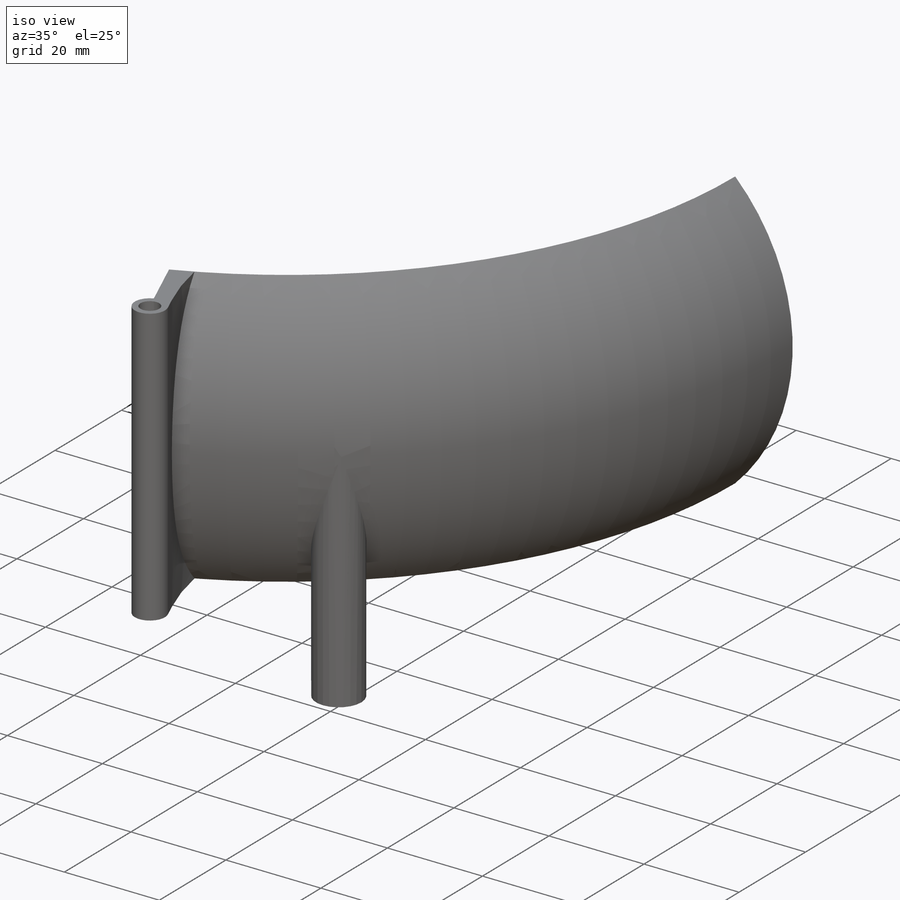
[diagram: iso view]
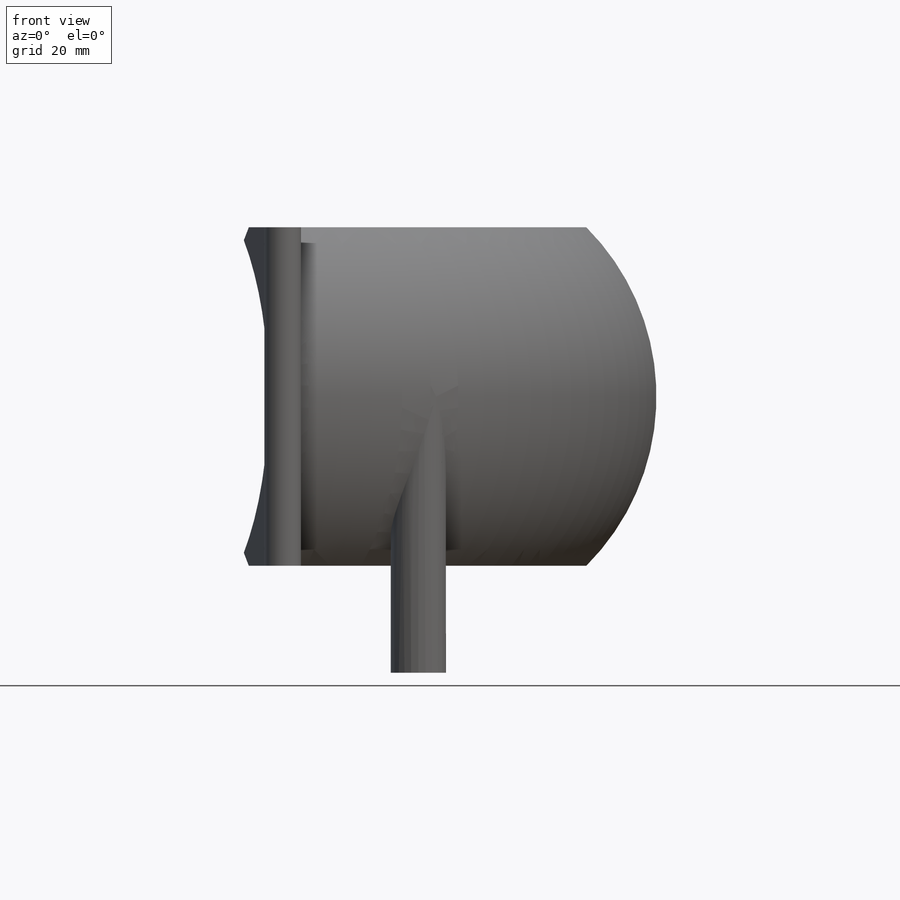
[diagram: front view]
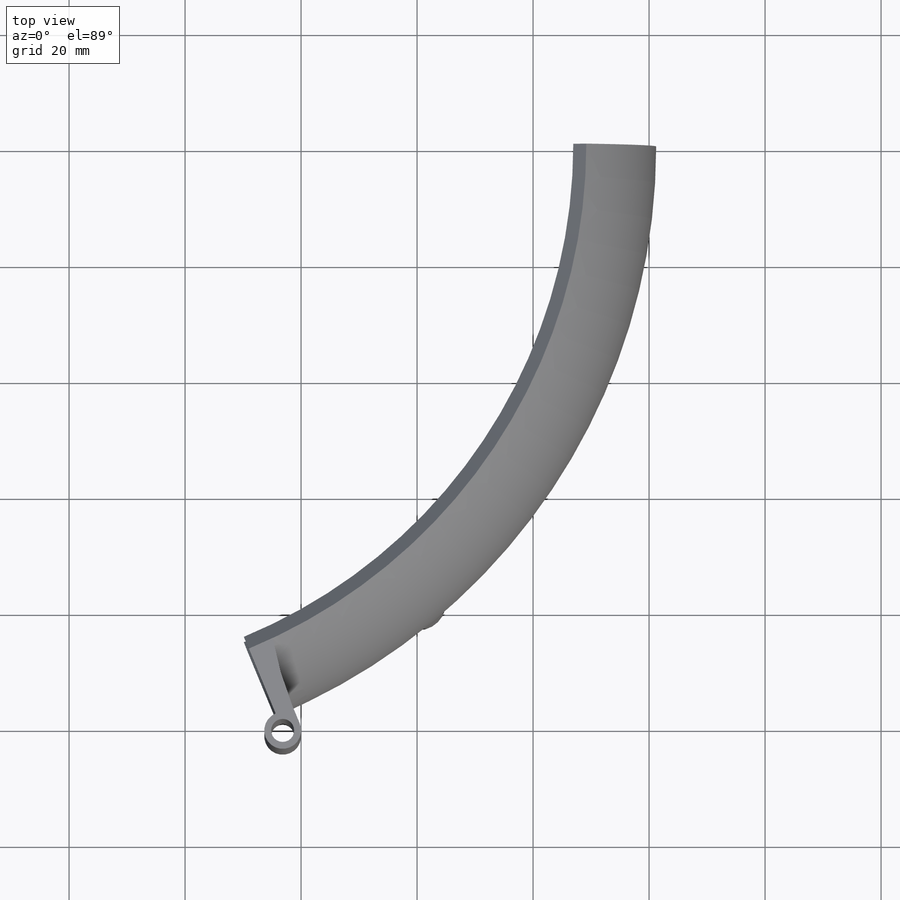
[diagram: top view]
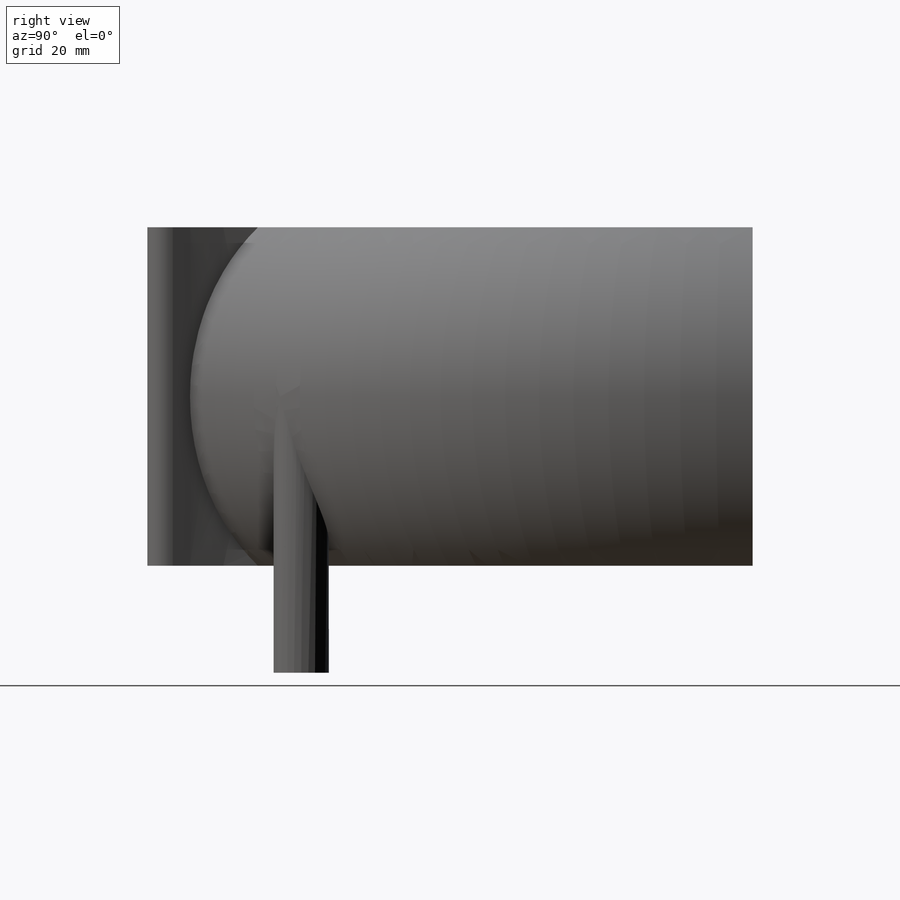
[diagram: right view]
SOLIDWORKS PART (.sldprt)
format: sldprt  version: not decoded by parser v0  size: 217,600 bytes
history: native  units: mm
features: sketch x4, extrude x2, material x1, revolve x1, cut_revolve x1 (+13 scaffold rows collapsed)
feature tree (22):
  scaffold x13  (default folders/planes/origin — collapsed)
  material  "Material <not specified>"
  sketch  "Sketch1"  dims[c1.D1=82.55mm c1.D2=41.275mm c2.D2=45.0deg c2.D3=41.275mm c3.D3=45.0deg c3.D2=65.0875mm c3.D4=3.175mm]
  revolve  "Revolve1"  Angle=67.5deg
  sketch  "Sketch2"  dims[D2=~3.96875mm D3=130.175mm D4=114.3mm D1=3.175mm]
  extrude  "Boss-Extrude1"  [1 undecoded]
  sketch  "Sketch4"  dims[c1.D1=~4.405488mm c1.D2=~3.96875mm c1.D3=~9.495511mm c2.D2=~3.96875mm c2.D3=9.525mm c2.D1=101.6mm c2.D4=~107.553125mm c3.D4=50.0deg]
  extrude  "Boss-Extrude2"  Depth=47.625mm
  sketch  "Sketch3"
  cut_revolve  "Cut-Revolve1"  Angle=360deg
decode coverage: 6 of 8 modeling features carry decoded parameters
note: ~ marks probable driven/reference dimensions
note: 1 parameter value undecoded
note: suppression state not decoded; provenance and decode notes live in map.json
